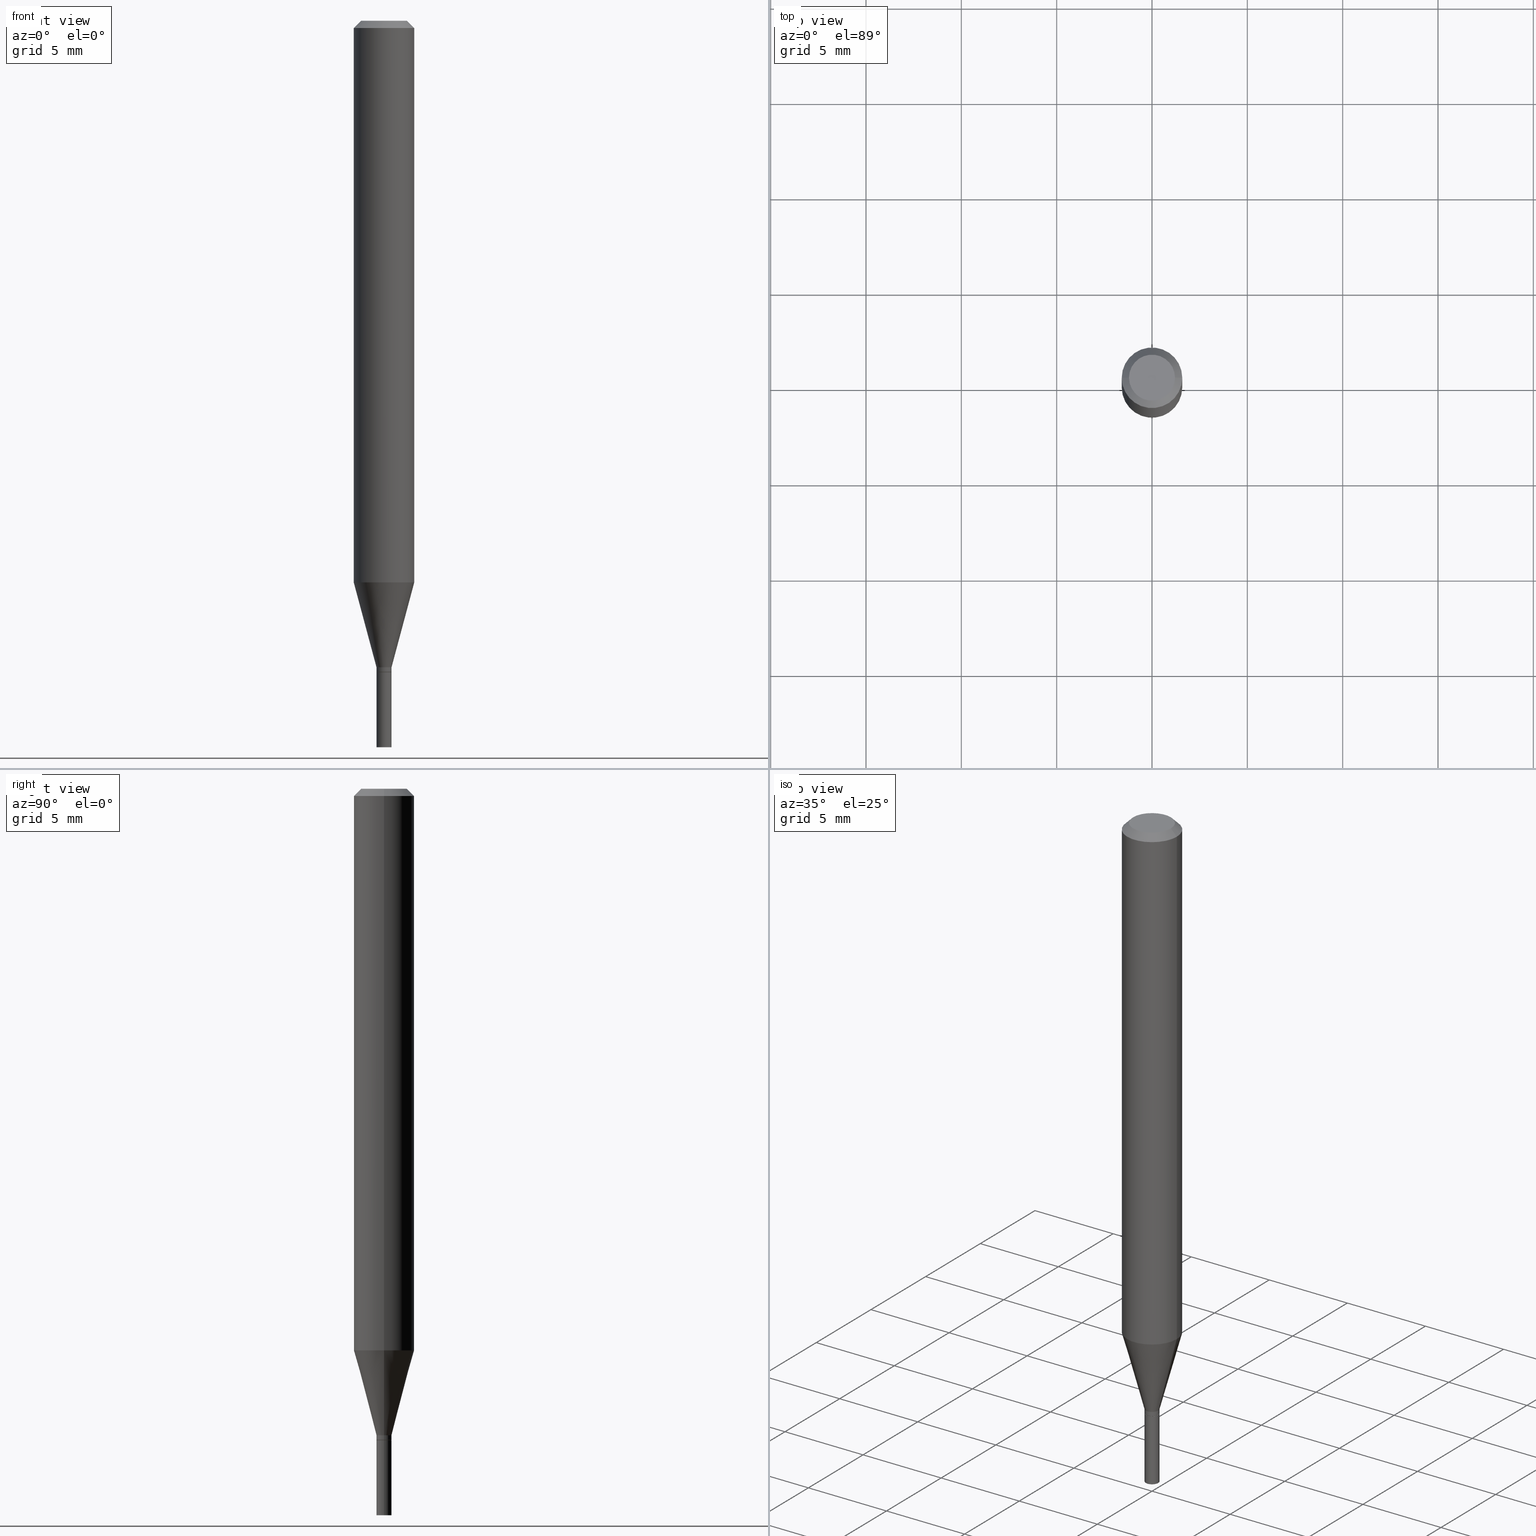
[diagram: canonical four-view strip — front | top / right | iso, engineering-drawing reading convention]
A machine part, canonical four-view strip (front | top / right | iso — engineering-drawing reading convention). The complete STEP part file that produces these views, byte-faithful:
ISO-10303-21;
HEADER;
FILE_DESCRIPTION (( 'STEP AP203' ),
    '1' );
FILE_NAME ('04187.STEP',
    '2024-03-14T17:14:28',
    ( '' ),
    ( '' ),
    'SwSTEP 2.0',
    'SolidWorks 2023',
    '' );
FILE_SCHEMA (( 'CONFIG_CONTROL_DESIGN' ));
ENDSEC;

DATA;
#1 = PERSON_AND_ORGANIZATION ( #73, #51 ) ;
#2 = AXIS2_PLACEMENT_3D ( 'NONE', #4, #323, #365 ) ;
#3 = LENGTH_MEASURE_WITH_UNIT ( LENGTH_MEASURE( 0.02539999999999999897 ), #172 );
#4 = CARTESIAN_POINT ( 'NONE',  ( 2.835750006105794188E-29, -4.048699457094262209E-15, -1.159593612044262922 ) ) ;
#5 = APPLICATION_CONTEXT ( 'configuration controlled 3d designs of mechanical parts and assemblies' ) ;
#6 = DIRECTION ( 'NONE',  ( -2.445468806185136597E-29, 3.491481338843145583E-15, 1.000000000000000000 ) ) ;
#7 = PERSON_AND_ORGANIZATION ( #73, #51 ) ;
#8 = APPROVAL_DATE_TIME ( #401, #173 ) ;
#9 = EDGE_LOOP ( 'NONE', ( #222, #300, #385, #147 ) ) ;
#10 = CC_DESIGN_APPROVAL ( #173, ( #248 ) ) ;
#11 = UNCERTAINTY_MEASURE_WITH_UNIT (LENGTH_MEASURE( 1.000000000000000082E-05 ), #429, 'distance_accuracy_value', 'NONE');
#12 = EDGE_CURVE ( 'NONE', #27, #245, #356, .T. ) ;
#13 = ORIENTED_EDGE ( 'NONE', *, *, #62, .F. ) ;
#14 = ADVANCED_FACE ( 'NONE', ( #285 ), #209, .T. ) ;
#15 = CARTESIAN_POINT ( 'NONE',  ( 0.01549999999999992183, -4.802532581578747222E-15, -1.344500000000000473 ) ) ;
#16 = EDGE_CURVE ( 'NONE', #138, #306, #57, .T. ) ;
#17 = DIRECTION ( 'NONE',  ( -2.445468806185136877E-29, 3.491481338843145188E-15, 1.000000000000000000 ) ) ;
#18 = AXIS2_PLACEMENT_3D ( 'NONE', #100, #30, #40 ) ;
#19 = FACE_OUTER_BOUND ( 'NONE', #419, .T. ) ;
#20 = DIRECTION ( 'NONE',  ( 2.445468806185136597E-29, -3.491481338843145583E-15, -1.000000000000000000 ) ) ;
#21 = DIRECTION ( 'NONE',  ( 1.000000000000000000, -6.982962677686273810E-15, 0.000000000000000000 ) ) ;
#22 = ORIENTED_EDGE ( 'NONE', *, *, #125, .T. ) ;
#23 = CYLINDRICAL_SURFACE ( 'NONE', #247, 0.01549999999999999989 ) ;
#24 = CARTESIAN_POINT ( 'NONE',  ( 0.000000000000000000, 0.000000000000000000, 0.000000000000000000 ) ) ;
#25 = FACE_OUTER_BOUND ( 'NONE', #281, .T. ) ;
#26 = LOCAL_TIME ( 13, 14, 28.00000000000000000, #207 ) ;
#27 = VERTEX_POINT ( 'NONE', #278 ) ;
#28 = DIRECTION ( 'NONE',  ( 1.000000000000000000, -6.982962677686262766E-15, 0.000000000000000000 ) ) ;
#29 = VERTEX_POINT ( 'NONE', #243 ) ;
#30 = DIRECTION ( 'NONE',  ( -2.445468806185136597E-29, 3.491481338843145583E-15, 1.000000000000000000 ) ) ;
#31 = CC_DESIGN_PERSON_AND_ORGANIZATION_ASSIGNMENT ( #293, #439, ( #265 ) ) ;
#32 = ORIENTED_EDGE ( 'NONE', *, *, #16, .T. ) ;
#33 = VERTEX_POINT ( 'NONE', #15 ) ;
#34 = CARTESIAN_POINT ( 'NONE',  ( 0.000000000000000000, 0.000000000000000000, 0.000000000000000000 ) ) ;
#35 = AXIS2_PLACEMENT_3D ( 'NONE', #461, #313, #168 ) ;
#36 = ORIENTED_EDGE ( 'NONE', *, *, #431, .T. ) ;
#37 = PERSON_AND_ORGANIZATION ( #73, #51 ) ;
#38 = CARTESIAN_POINT ( 'NONE',  ( 0.01549999999999991836, -4.769363508859736288E-15, -1.335000000000000187 ) ) ;
#39 = EDGE_CURVE ( 'NONE', #289, #33, #190, .T. ) ;
#40 = DIRECTION ( 'NONE',  ( 1.000000000000000000, -6.982962677686275388E-15, 0.000000000000000000 ) ) ;
#41 = EDGE_CURVE ( 'NONE', #64, #452, #169, .T. ) ;
#42 = EDGE_LOOP ( 'NONE', ( #70, #187, #353, #380 ) ) ;
#43 = APPROVAL_ROLE ( '' ) ;
#44 = ADVANCED_FACE ( 'NONE', ( #261 ), #337, .T. ) ;
#45 = PERSON_AND_ORGANIZATION ( #73, #51 ) ;
#46 = CARTESIAN_POINT ( 'NONE',  ( -0.01549999999999999989, -4.856498080461560425E-15, -1.500000000000000222 ) ) ;
#47 = DIRECTION ( 'NONE',  ( 1.000000000000000000, -6.982962677686275388E-15, 0.000000000000000000 ) ) ;
#48 = VECTOR ( 'NONE', #262, 39.37007874015748143 ) ;
#49 = ADVANCED_FACE ( 'NONE', ( #19 ), #159, .T. ) ;
#50 = CARTESIAN_POINT ( 'NONE',  ( 0.01549999999999992009, -1.082359215041365862E-16, 7.558074002483661383E-31 ) ) ;
#51 = ORGANIZATION ( 'UNSPECIFIED', 'UNSPECIFIED', '' ) ;
#52 = PRODUCT_RELATED_PRODUCT_CATEGORY ( 'detail', '', ( #344 ) ) ;
#53 = CARTESIAN_POINT ( 'NONE',  ( -0.01549999999999992009, 1.101341240428149610E-16, -7.624349389895064522E-31 ) ) ;
#54 = CARTESIAN_POINT ( 'NONE',  ( 3.289155544319009306E-29, -4.696042400744032349E-15, -1.345000000000000195 ) ) ;
#55 = EDGE_CURVE ( 'NONE', #139, #391, #85, .T. ) ;
#56 = CARTESIAN_POINT ( 'NONE',  ( -0.06250000000000000000, -1.606446628738392225E-15, -0.01499999999999999944 ) ) ;
#57 = CIRCLE ( 'NONE', #149, 0.01549999999999999989 ) ;
#58 = DIRECTION ( 'NONE',  ( 2.438088387897960049E-29, -3.491481338843145188E-15, -1.000000000000000000 ) ) ;
#59 = CIRCLE ( 'NONE', #87, 0.04749999999999999362 ) ;
#60 = DIRECTION ( 'NONE',  ( 1.000000000000000000, -6.982962677686275388E-15, 0.000000000000000000 ) ) ;
#61 = ORIENTED_EDGE ( 'NONE', *, *, #83, .T. ) ;
#62 = EDGE_CURVE ( 'NONE', #29, #138, #235, .T. ) ;
#63 = EDGE_CURVE ( 'NONE', #452, #81, #448, .T. ) ;
#64 = VERTEX_POINT ( 'NONE', #374 ) ;
#65 = PERSON_AND_ORGANIZATION_ROLE ( 'design_owner' ) ;
#66 = CARTESIAN_POINT ( 'NONE',  ( 3.668203209277705088E-31, -5.237222008264718399E-17, -0.01499999999999999944 ) ) ;
#67 = ORIENTED_EDGE ( 'NONE', *, *, #63, .F. ) ;
#68 = DIRECTION ( 'NONE',  ( 1.000000000000000000, -6.982962677686268288E-15, 0.000000000000000000 ) ) ;
#69 = AXIS2_PLACEMENT_3D ( 'NONE', #114, #257, #403 ) ;
#70 = ORIENTED_EDGE ( 'NONE', *, *, #12, .F. ) ;
#71 = DIRECTION ( 'NONE',  ( 0.2588190451025212391, 1.565188264969622362E-15, 0.9659258262890679791 ) ) ;
#72 = CYLINDRICAL_SURFACE ( 'NONE', #212, 0.06250000000000000000 ) ;
#73 = PERSON ( 'UNSPECIFIED', 'UNSPECIFIED', 'UNSPECIFIED', ('UNSPECIFIED'), ('UNSPECIFIED'), ('UNSPECIFIED') ) ;
#74 = VECTOR ( 'NONE', #213, 39.37007874015748143 ) ;
#75 = PERSON_AND_ORGANIZATION ( #73, #51 ) ;
#76 = DIRECTION ( 'NONE',  ( -2.445468806185136597E-29, 3.491481338843145583E-15, 1.000000000000000000 ) ) ;
#77 = AXIS2_PLACEMENT_3D ( 'NONE', #417, #121, #118 ) ;
#78 = CC_DESIGN_PERSON_AND_ORGANIZATION_ASSIGNMENT ( #354, #65, ( #344 ) ) ;
#79 = LOCAL_TIME ( 13, 14, 28.00000000000000000, #181 ) ;
#80 = SHAPE_DEFINITION_REPRESENTATION ( #134, #349 ) ;
#81 = VERTEX_POINT ( 'NONE', #56 ) ;
#82 = DIRECTION ( 'NONE',  ( -2.445468806185136877E-29, 3.491481338843145188E-15, 1.000000000000000000 ) ) ;
#83 = EDGE_CURVE ( 'NONE', #166, #306, #305, .T. ) ;
#84 = DIRECTION ( 'NONE',  ( -2.445468806185136597E-29, 3.491481338843145583E-15, 1.000000000000000000 ) ) ;
#85 = CIRCLE ( 'NONE', #192, 0.01549999999999991836 ) ;
#86 = FACE_OUTER_BOUND ( 'NONE', #406, .T. ) ;
#87 = AXIS2_PLACEMENT_3D ( 'NONE', #454, #201, #122 ) ;
#88 = DIRECTION ( 'NONE',  ( -2.445468806185136597E-29, 3.491481338843145583E-15, 1.000000000000000000 ) ) ;
#89 = EDGE_LOOP ( 'NONE', ( #182, #342, #233, #396 ) ) ;
#90 = EDGE_CURVE ( 'NONE', #289, #273, #450, .T. ) ;
#91 = CARTESIAN_POINT ( 'NONE',  ( 0.06250000000000000000, -4.811533449433679005E-16, -0.01499999999999999944 ) ) ;
#92 = CARTESIAN_POINT ( 'NONE',  ( 3.264700856257157760E-29, -4.661127587355599122E-15, -1.335000000000000187 ) ) ;
#93 = CARTESIAN_POINT ( 'NONE',  ( 3.264700856257157760E-29, -4.661127587355599122E-15, -1.335000000000000187 ) ) ;
#94 = ADVANCED_FACE ( 'NONE', ( #241 ), #421, .T. ) ;
#95 = ORIENTED_EDGE ( 'NONE', *, *, #221, .T. ) ;
#96 = DIRECTION ( 'NONE',  ( 0.000000000000000000, 0.000000000000000000, 1.000000000000000000 ) ) ;
#97 = CONICAL_SURFACE ( 'NONE', #174, 0.06250000000000000000, 0.7853981633974639331 ) ;
#98 = ADVANCED_FACE ( 'NONE', ( #432 ), #197, .T. ) ;
#99 = ORIENTED_EDGE ( 'NONE', *, *, #295, .F. ) ;
#100 = CARTESIAN_POINT ( 'NONE',  ( 3.264700856257157760E-29, -4.661127587355599122E-15, -1.335000000000000187 ) ) ;
#101 = EDGE_LOOP ( 'NONE', ( #402, #102, #123, #457 ) ) ;
#102 = ORIENTED_EDGE ( 'NONE', *, *, #107, .T. ) ;
#103 = DIRECTION ( 'NONE',  ( 1.000000000000000000, 0.000000000000000000, 0.000000000000000000 ) ) ;
#104 = EDGE_LOOP ( 'NONE', ( #111, #156, #67, #128 ) ) ;
#105 = PERSON_AND_ORGANIZATION_ROLE ( 'creator' ) ;
#106 = AXIS2_PLACEMENT_3D ( 'NONE', #34, #423, #277 ) ;
#107 = EDGE_CURVE ( 'NONE', #139, #176, #314, .T. ) ;
#108 = DATE_AND_TIME ( #283, #131 ) ;
#109 = AXIS2_PLACEMENT_3D ( 'NONE', #198, #58, #203 ) ;
#110 = ORIENTED_EDGE ( 'NONE', *, *, #62, .T. ) ;
#111 = ORIENTED_EDGE ( 'NONE', *, *, #205, .T. ) ;
#112 = DESIGN_CONTEXT ( 'detailed design', #216, 'design' ) ;
#113 = CC_DESIGN_DATE_AND_TIME_ASSIGNMENT ( #108, #224, ( #441 ) ) ;
#114 = CARTESIAN_POINT ( 'NONE',  ( 3.576687321579069994E-29, -5.368277968210015545E-15, -1.500000000000000222 ) ) ;
#115 = AXIS2_PLACEMENT_3D ( 'NONE', #320, #6, #436 ) ;
#116 = EDGE_CURVE ( 'NONE', #176, #64, #440, .T. ) ;
#117 = CARTESIAN_POINT ( 'NONE',  ( -0.06250000000000000000, 4.440892098500626162E-16, -3.074334431409316114E-30 ) ) ;
#118 = DIRECTION ( 'NONE',  ( -1.000000000000000000, 6.982962677686265922E-15, -4.876176775795935793E-29 ) ) ;
#119 = DIRECTION ( 'NONE',  ( 1.000000000000000000, -6.982962677686266711E-15, 4.876176775795935232E-29 ) ) ;
#120 = CIRCLE ( 'NONE', #389, 0.06250000000000000000 ) ;
#121 = DIRECTION ( 'NONE',  ( 2.438088387897960049E-29, -3.491481338843145188E-15, -1.000000000000000000 ) ) ;
#122 = DIRECTION ( 'NONE',  ( 1.000000000000000000, -6.982962677686267499E-15, 4.852736867747366768E-29 ) ) ;
#123 = ORIENTED_EDGE ( 'NONE', *, *, #205, .F. ) ;
#124 = DIRECTION ( 'NONE',  ( -0.7071067811865642261, 7.493145998870414114E-15, 0.7071067811865309194 ) ) ;
#125 = EDGE_CURVE ( 'NONE', #245, #27, #59, .T. ) ;
#126 = CARTESIAN_POINT ( 'NONE',  ( 0.000000000000000000, 0.000000000000000000, 0.000000000000000000 ) ) ;
#127 = CARTESIAN_POINT ( 'NONE',  ( 0.000000000000000000, 0.000000000000000000, 0.000000000000000000 ) ) ;
#128 = ORIENTED_EDGE ( 'NONE', *, *, #41, .F. ) ;
#129 = FACE_OUTER_BOUND ( 'NONE', #104, .T. ) ;
#130 = ADVANCED_FACE ( 'NONE', ( #25 ), #296, .F. ) ;
#131 = LOCAL_TIME ( 13, 14, 28.00000000000000000, #246 ) ;
#132 = CC_DESIGN_SECURITY_CLASSIFICATION ( #248, ( #265 ) ) ;
#133 = DIRECTION ( 'NONE',  ( -1.000000000000000000, 6.982962677686266711E-15, 0.000000000000000000 ) ) ;
#134 = PRODUCT_DEFINITION_SHAPE ( 'NONE', 'NONE',  #441 ) ;
#135 = ORIENTED_EDGE ( 'NONE', *, *, #12, .T. ) ;
#136 = DIRECTION ( 'NONE',  ( 1.000000000000000000, -6.982962677686266711E-15, 4.876176775795935793E-29 ) ) ;
#137 = DIRECTION ( 'NONE',  ( 1.000000000000000000, -6.982962677686238312E-15, 0.000000000000000000 ) ) ;
#138 = VERTEX_POINT ( 'NONE', #175 ) ;
#139 = VERTEX_POINT ( 'NONE', #317 ) ;
#140 = LINE ( 'NONE', #38, #358 ) ;
#141 = DIRECTION ( 'NONE',  ( -2.445468806185136877E-29, 3.491481338843145188E-15, 1.000000000000000000 ) ) ;
#142 = CC_DESIGN_APPROVAL ( #359, ( #265 ) ) ;
#143 = DATE_AND_TIME ( #148, #79 ) ;
#144 = FACE_OUTER_BOUND ( 'NONE', #427, .T. ) ;
#145 = CIRCLE ( 'NONE', #379, 0.01549999999999992183 ) ;
#146 = CC_DESIGN_PERSON_AND_ORGANIZATION_ASSIGNMENT ( #1, #105, ( #441 ) ) ;
#147 = ORIENTED_EDGE ( 'NONE', *, *, #39, .F. ) ;
#148 = CALENDAR_DATE ( 2024, 14, 3 ) ;
#149 = AXIS2_PLACEMENT_3D ( 'NONE', #167, #378, #137 ) ;
#150 = CIRCLE ( 'NONE', #258, 0.01549999999999999989 ) ;
#151 = DIRECTION ( 'NONE',  ( -2.438088387897960049E-29, 3.491481338843145188E-15, 1.000000000000000000 ) ) ;
#152 = DIRECTION ( 'NONE',  ( -2.445468806185136597E-29, 3.491481338843145583E-15, 1.000000000000000000 ) ) ;
#153 = CARTESIAN_POINT ( 'NONE',  ( 3.287932809915917065E-29, -4.694296660074610845E-15, -1.344500000000000473 ) ) ;
#154 = EDGE_CURVE ( 'NONE', #29, #166, #150, .T. ) ;
#155 = DIRECTION ( 'NONE',  ( -2.445468806185136597E-29, 3.491481338843145583E-15, 1.000000000000000000 ) ) ;
#156 = ORIENTED_EDGE ( 'NONE', *, *, #269, .T. ) ;
#157 = AXIS2_PLACEMENT_3D ( 'NONE', #93, #449, #47 ) ;
#158 = DIRECTION ( 'NONE',  ( -1.000000000000000000, 6.982962677686266711E-15, 0.000000000000000000 ) ) ;
#159 = CYLINDRICAL_SURFACE ( 'NONE', #433, 0.01549999999999999989 ) ;
#160 = ORIENTED_EDGE ( 'NONE', *, *, #295, .T. ) ;
#161 = FACE_OUTER_BOUND ( 'NONE', #214, .T. ) ;
#162 = LINE ( 'NONE', #459, #193 ) ;
#163 = ADVANCED_FACE ( 'NONE', ( #144 ), #352, .T. ) ;
#164 = EDGE_LOOP ( 'NONE', ( #99, #95, #445, #388 ) ) ;
#165 = CARTESIAN_POINT ( 'NONE',  ( 0.000000000000000000, 0.000000000000000000, 0.000000000000000000 ) ) ;
#166 = VERTEX_POINT ( 'NONE', #46 ) ;
#167 = CARTESIAN_POINT ( 'NONE',  ( 3.289155544319009306E-29, -4.696042400744032349E-15, -1.345000000000000195 ) ) ;
#168 = DIRECTION ( 'NONE',  ( 1.000000000000000000, -6.982962677686238312E-15, 0.000000000000000000 ) ) ;
#169 = LINE ( 'NONE', #384, #48 ) ;
#170 = EDGE_CURVE ( 'NONE', #245, #81, #162, .T. ) ;
#171 = CARTESIAN_POINT ( 'NONE',  ( 3.289155544319009306E-29, -4.696042400744032349E-15, -1.345000000000000195 ) ) ;
#172 =( LENGTH_UNIT ( ) NAMED_UNIT ( * ) SI_UNIT ( $, .METRE. ) );
#173 = APPROVAL ( #318, 'UNSPECIFIED' ) ;
#174 = AXIS2_PLACEMENT_3D ( 'NONE', #228, #20, #158 ) ;
#175 = CARTESIAN_POINT ( 'NONE',  ( 0.01549999999999999989, -4.804278322248168726E-15, -1.345000000000000195 ) ) ;
#176 = VERTEX_POINT ( 'NONE', #291 ) ;
#177 = CARTESIAN_POINT ( 'NONE',  ( 3.668203209277704895E-29, -5.237222008264718177E-15, -1.500000000000000222 ) ) ;
#178 = EDGE_LOOP ( 'NONE', ( #251, #237 ) ) ;
#179 = APPROVAL_ROLE ( '' ) ;
#180 = DIRECTION ( 'NONE',  ( 1.000000000000000000, -6.982962677686238312E-15, 0.000000000000000000 ) ) ;
#181 = COORDINATED_UNIVERSAL_TIME_OFFSET ( 5, 0, .BEHIND. ) ;
#182 = ORIENTED_EDGE ( 'NONE', *, *, #276, .F. ) ;
#183 = EDGE_CURVE ( 'NONE', #33, #447, #145, .T. ) ;
#184 = CONICAL_SURFACE ( 'NONE', #157, 0.01549999999999991836, 0.2617993877991499629 ) ;
#185 = APPROVAL_PERSON_ORGANIZATION ( #75, #173, #179 ) ;
#186 = APPROVAL_DATE_TIME ( #143, #359 ) ;
#187 = ORIENTED_EDGE ( 'NONE', *, *, #328, .T. ) ;
#188 = APPROVAL_STATUS ( 'not_yet_approved' ) ;
#189 = DIMENSIONAL_EXPONENTS ( 1.000000000000000000, 0.000000000000000000, 0.000000000000000000, 0.000000000000000000, 0.000000000000000000, 0.000000000000000000, 0.000000000000000000 ) ;
#190 = LINE ( 'NONE', #442, #74 ) ;
#191 = PLANE ( 'NONE',  #331 ) ;
#192 = AXIS2_PLACEMENT_3D ( 'NONE', #92, #152, #60 ) ;
#193 = VECTOR ( 'NONE', #325, 39.37007874015748143 ) ;
#194 = DIRECTION ( 'NONE',  ( 1.000000000000000000, -6.982962677686267499E-15, 4.852736867747366768E-29 ) ) ;
#195 = LOCAL_TIME ( 13, 14, 28.00000000000000000, #329 ) ;
#196 = DIRECTION ( 'NONE',  ( -2.445468806185136597E-29, 3.491481338843145583E-15, 1.000000000000000000 ) ) ;
#197 = CONICAL_SURFACE ( 'NONE', #363, 0.06250000000000000000, 0.7853981633974639331 ) ;
#198 = CARTESIAN_POINT ( 'NONE',  ( 3.316907271900976096E-16, 0.04749999999999999362, -4.000479145938377490E-16 ) ) ;
#199 = EDGE_CURVE ( 'NONE', #273, #289, #316, .T. ) ;
#200 = DIRECTION ( 'NONE',  ( -2.445468806185136597E-29, 3.491481338843145583E-15, 1.000000000000000000 ) ) ;
#201 = DIRECTION ( 'NONE',  ( -2.445468806185136597E-29, 3.491481338843145583E-15, 1.000000000000000000 ) ) ;
#202 = VECTOR ( 'NONE', #124, 39.37007874015748143 ) ;
#203 = DIRECTION ( 'NONE',  ( -1.000000000000000000, 6.982962677686265922E-15, -4.876176775795935793E-29 ) ) ;
#204 = DIRECTION ( 'NONE',  ( -2.445468806185136877E-29, 3.491481338843145188E-15, 1.000000000000000000 ) ) ;
#205 = EDGE_CURVE ( 'NONE', #64, #176, #120, .T. ) ;
#206 = APPLICATION_PROTOCOL_DEFINITION ( 'international standard', 'config_control_design', 1994, #216 ) ;
#207 = COORDINATED_UNIVERSAL_TIME_OFFSET ( 5, 0, .BEHIND. ) ;
#208 = AXIS2_PLACEMENT_3D ( 'NONE', #127, #367, #268 ) ;
#209 = CONICAL_SURFACE ( 'NONE', #347, 0.01499999999999999944, 0.7853981633974718157 ) ;
#210 = ORIENTED_EDGE ( 'NONE', *, *, #16, .F. ) ;
#211 = DATE_AND_TIME ( #346, #26 ) ;
#212 = AXIS2_PLACEMENT_3D ( 'NONE', #165, #343, #136 ) ;
#213 = DIRECTION ( 'NONE',  ( 0.7071067811865642261, -2.468850131082431399E-15, 0.7071067811865309194 ) ) ;
#214 = EDGE_LOOP ( 'NONE', ( #394, #227, #110, #266 ) ) ;
#215 = DIRECTION ( 'NONE',  ( 1.000000000000000000, -6.982962677686268288E-15, 0.000000000000000000 ) ) ;
#216 = APPLICATION_CONTEXT ( 'configuration controlled 3d designs of mechanical parts and assemblies' ) ;
#217 = CARTESIAN_POINT ( 'NONE',  ( 0.06250000000000000000, -4.888073874380388472E-16, -0.01499999999999999944 ) ) ;
#218 = CALENDAR_DATE ( 2024, 14, 3 ) ;
#219 = ORIENTED_EDGE ( 'NONE', *, *, #399, .T. ) ;
#220 = CIRCLE ( 'NONE', #18, 0.01549999999999991836 ) ;
#221 = EDGE_CURVE ( 'NONE', #447, #33, #229, .T. ) ;
#222 = ORIENTED_EDGE ( 'NONE', *, *, #90, .T. ) ;
#223 = AXIS2_PLACEMENT_3D ( 'NONE', #430, #76, #397 ) ;
#224 = DATE_TIME_ROLE ( 'creation_date' ) ;
#225 = CC_DESIGN_APPROVAL ( #254, ( #441 ) ) ;
#226 = CARTESIAN_POINT ( 'NONE',  ( 0.01549999999999991836, -4.769363508859736288E-15, -1.335000000000000187 ) ) ;
#227 = ORIENTED_EDGE ( 'NONE', *, *, #308, .T. ) ;
#228 = CARTESIAN_POINT ( 'NONE',  ( 3.668203209277705088E-31, -5.237222008264718399E-17, -0.01499999999999999944 ) ) ;
#229 = CIRCLE ( 'NONE', #326, 0.01549999999999992183 ) ;
#230 = ORIENTED_EDGE ( 'NONE', *, *, #125, .F. ) ;
#231 = CARTESIAN_POINT ( 'NONE',  ( -0.01499999999999999944, -4.589460990380017226E-15, -1.345000000000000195 ) ) ;
#232 = MANIFOLD_SOLID_BREP ( 'Body-Move/Copy2[1]', #368 ) ;
#233 = ORIENTED_EDGE ( 'NONE', *, *, #39, .T. ) ;
#234 = PLANE ( 'NONE',  #109 ) ;
#235 = LINE ( 'NONE', #418, #351 ) ;
#236 = DIRECTION ( 'NONE',  ( -2.445468806185136877E-29, 3.491481338843145188E-15, 1.000000000000000000 ) ) ;
#237 = ORIENTED_EDGE ( 'NONE', *, *, #199, .F. ) ;
#238 = CIRCLE ( 'NONE', #339, 0.01549999999999999989 ) ;
#239 = EDGE_LOOP ( 'NONE', ( #345, #422, #303, #271 ) ) ;
#240 = CC_DESIGN_PERSON_AND_ORGANIZATION_ASSIGNMENT ( #360, #362, ( #248 ) ) ;
#241 = FACE_OUTER_BOUND ( 'NONE', #9, .T. ) ;
#242 = ORIENTED_EDGE ( 'NONE', *, *, #308, .F. ) ;
#243 = CARTESIAN_POINT ( 'NONE',  ( 0.01549999999999999989, -5.345457929768855342E-15, -1.500000000000000222 ) ) ;
#244 = AXIS2_PLACEMENT_3D ( 'NONE', #264, #411, #372 ) ;
#245 = VERTEX_POINT ( 'NONE', #334 ) ;
#246 = COORDINATED_UNIVERSAL_TIME_OFFSET ( 5, 0, .BEHIND. ) ;
#247 = AXIS2_PLACEMENT_3D ( 'NONE', #126, #155, #405 ) ;
#248 = SECURITY_CLASSIFICATION ( '', '', #327 ) ;
#249 = DIRECTION ( 'NONE',  ( 1.000000000000000000, -6.982962677686266711E-15, 0.000000000000000000 ) ) ;
#250 = ADVANCED_FACE ( 'NONE', ( #307 ), #366, .F. ) ;
#251 = ORIENTED_EDGE ( 'NONE', *, *, #90, .F. ) ;
#252 = VECTOR ( 'NONE', #141, 39.37007874015748143 ) ;
#253 = AXIS2_PLACEMENT_3D ( 'NONE', #386, #96, #103 ) ;
#254 = APPROVAL ( #311, 'UNSPECIFIED' ) ;
#255 = ADVANCED_FACE ( 'NONE', ( #86 ), #336, .T. ) ;
#256 = CALENDAR_DATE ( 2024, 14, 3 ) ;
#257 = DIRECTION ( 'NONE',  ( -2.438088387897960049E-29, 3.491481338843145188E-15, 1.000000000000000000 ) ) ;
#258 = AXIS2_PLACEMENT_3D ( 'NONE', #177, #319, #180 ) ;
#259 = ADVANCED_FACE ( 'NONE', ( #260 ), #97, .T. ) ;
#260 = FACE_OUTER_BOUND ( 'NONE', #322, .T. ) ;
#261 = FACE_OUTER_BOUND ( 'NONE', #164, .T. ) ;
#262 = DIRECTION ( 'NONE',  ( -2.445468806185136877E-29, 3.491481338843145188E-15, 1.000000000000000000 ) ) ;
#263 = LINE ( 'NONE', #91, #451 ) ;
#264 = CARTESIAN_POINT ( 'NONE',  ( 3.668203209277705088E-31, -5.237222008264718399E-17, -0.01499999999999999944 ) ) ;
#265 = PRODUCT_DEFINITION_FORMATION_WITH_SPECIFIED_SOURCE ( 'ANY', '', #344, .NOT_KNOWN. ) ;
#266 = ORIENTED_EDGE ( 'NONE', *, *, #426, .F. ) ;
#267 = DIRECTION ( 'NONE',  ( -2.445468806185136597E-29, 3.491481338843145583E-15, 1.000000000000000000 ) ) ;
#268 = DIRECTION ( 'NONE',  ( 1.000000000000000000, -6.982962677686267499E-15, 4.876176775795935793E-29 ) ) ;
#269 = EDGE_CURVE ( 'NONE', #176, #81, #330, .T. ) ;
#270 = DIRECTION ( 'NONE',  ( 1.000000000000000000, -6.982962677686267499E-15, 4.876176775795935793E-29 ) ) ;
#271 = ORIENTED_EDGE ( 'NONE', *, *, #399, .F. ) ;
#272 = CC_DESIGN_PERSON_AND_ORGANIZATION_ASSIGNMENT ( #45, #286, ( #265 ) ) ;
#273 = VERTEX_POINT ( 'NONE', #453 ) ;
#274 =( GEOMETRIC_REPRESENTATION_CONTEXT ( 3 ) GLOBAL_UNCERTAINTY_ASSIGNED_CONTEXT ( ( #11 ) ) GLOBAL_UNIT_ASSIGNED_CONTEXT ( ( #429, #315, #393 ) ) REPRESENTATION_CONTEXT ( 'NONE', 'WORKASPACE' ) );
#275 = FACE_OUTER_BOUND ( 'NONE', #239, .T. ) ;
#276 = EDGE_CURVE ( 'NONE', #273, #447, #301, .T. ) ;
#277 = DIRECTION ( 'NONE',  ( 1.000000000000000000, -6.982962677686266711E-15, 4.876176775795935793E-29 ) ) ;
#278 = CARTESIAN_POINT ( 'NONE',  ( 0.04749999999999999362, -4.035134999187586019E-16, -4.684051019975741414E-16 ) ) ;
#279 = DIRECTION ( 'NONE',  ( -2.445468806185136597E-29, 3.491481338843145583E-15, 1.000000000000000000 ) ) ;
#280 = ORIENTED_EDGE ( 'NONE', *, *, #116, .F. ) ;
#281 = EDGE_LOOP ( 'NONE', ( #413, #242 ) ) ;
#282 = APPROVAL_DATE_TIME ( #211, #254 ) ;
#283 = CALENDAR_DATE ( 2024, 14, 3 ) ;
#284 = APPROVAL_PERSON_ORGANIZATION ( #7, #359, #43 ) ;
#285 = FACE_OUTER_BOUND ( 'NONE', #89, .T. ) ;
#286 = PERSON_AND_ORGANIZATION_ROLE ( 'creator' ) ;
#287 = APPROVAL_PERSON_ORGANIZATION ( #37, #254, #465 ) ;
#288 = ADVANCED_FACE ( 'NONE', ( #333 ), #184, .T. ) ;
#289 = VERTEX_POINT ( 'NONE', #458 ) ;
#290 = DATE_AND_TIME ( #256, #463 ) ;
#291 = CARTESIAN_POINT ( 'NONE',  ( -0.06250000000000000000, -3.604610247244199593E-15, -1.159593612044262922 ) ) ;
#292 = DIRECTION ( 'NONE',  ( -2.445468806185136597E-29, 3.491481338843145583E-15, 1.000000000000000000 ) ) ;
#293 = PERSON_AND_ORGANIZATION ( #73, #51 ) ;
#294 = CIRCLE ( 'NONE', #412, 0.06250000000000000000 ) ;
#295 = EDGE_CURVE ( 'NONE', #447, #139, #414, .T. ) ;
#296 = PLANE ( 'NONE',  #69 ) ;
#297 = DIRECTION ( 'NONE',  ( 1.000000000000000000, -6.982962677686265922E-15, 4.876176775795935793E-29 ) ) ;
#298 = DIRECTION ( 'NONE',  ( 1.000000000000000000, -6.982962677686238312E-15, 0.000000000000000000 ) ) ;
#299 = CARTESIAN_POINT ( 'NONE',  ( 3.289155544319009306E-29, -4.696042400744032349E-15, -1.345000000000000195 ) ) ;
#300 = ORIENTED_EDGE ( 'NONE', *, *, #276, .T. ) ;
#301 = LINE ( 'NONE', #231, #202 ) ;
#302 = CIRCLE ( 'NONE', #35, 0.01549999999999999989 ) ;
#303 = ORIENTED_EDGE ( 'NONE', *, *, #41, .T. ) ;
#304 = CARTESIAN_POINT ( 'NONE',  ( 2.835750006105794188E-29, -4.048699457094262209E-15, -1.159593612044262922 ) ) ;
#305 = LINE ( 'NONE', #455, #252 ) ;
#306 = VERTEX_POINT ( 'NONE', #369 ) ;
#307 = FACE_OUTER_BOUND ( 'NONE', #416, .T. ) ;
#308 = EDGE_CURVE ( 'NONE', #166, #29, #238, .T. ) ;
#309 = APPLICATION_PROTOCOL_DEFINITION ( 'international standard', 'config_control_design', 1994, #5 ) ;
#310 = AXIS2_PLACEMENT_3D ( 'NONE', #24, #267, #270 ) ;
#311 = APPROVAL_STATUS ( 'not_yet_approved' ) ;
#312 = ORIENTED_EDGE ( 'NONE', *, *, #335, .F. ) ;
#313 = DIRECTION ( 'NONE',  ( -2.445468806185136597E-29, 3.491481338843145583E-15, 1.000000000000000000 ) ) ;
#314 = LINE ( 'NONE', #387, #332 ) ;
#315 =( NAMED_UNIT ( * ) PLANE_ANGLE_UNIT ( ) SI_UNIT ( $, .RADIAN. ) );
#316 = CIRCLE ( 'NONE', #420, 0.01499999999999999944 ) ;
#317 = CARTESIAN_POINT ( 'NONE',  ( -0.01549999999999991836, -4.077801855278492136E-15, -1.335000000000000187 ) ) ;
#318 = APPROVAL_STATUS ( 'not_yet_approved' ) ;
#319 = DIRECTION ( 'NONE',  ( -2.445468806185136597E-29, 3.491481338843145583E-15, 1.000000000000000000 ) ) ;
#320 = CARTESIAN_POINT ( 'NONE',  ( 3.264700856257157760E-29, -4.661127587355599122E-15, -1.335000000000000187 ) ) ;
#321 = DIRECTION ( 'NONE',  ( -2.445468806185136597E-29, 3.491481338843145583E-15, 1.000000000000000000 ) ) ;
#322 = EDGE_LOOP ( 'NONE', ( #424, #230, #398, #219 ) ) ;
#323 = DIRECTION ( 'NONE',  ( -2.445468806185136597E-29, 3.491481338843145583E-15, 1.000000000000000000 ) ) ;
#324 = COORDINATED_UNIVERSAL_TIME_OFFSET ( 5, 0, .BEHIND. ) ;
#325 = DIRECTION ( 'NONE',  ( -0.7071067811865585639, 2.468850131082372629E-15, -0.7071067811865364705 ) ) ;
#326 = AXIS2_PLACEMENT_3D ( 'NONE', #153, #84, #409 ) ;
#327 = SECURITY_CLASSIFICATION_LEVEL ( 'unclassified' ) ;
#328 = EDGE_CURVE ( 'NONE', #27, #452, #263, .T. ) ;
#329 = COORDINATED_UNIVERSAL_TIME_OFFSET ( 5, 0, .BEHIND. ) ;
#330 = LINE ( 'NONE', #117, #404 ) ;
#331 = AXIS2_PLACEMENT_3D ( 'NONE', #54, #151, #297 ) ;
#332 = VECTOR ( 'NONE', #350, 39.37007874015748854 ) ;
#333 = FACE_OUTER_BOUND ( 'NONE', #101, .T. ) ;
#334 = CARTESIAN_POINT ( 'NONE',  ( -0.04749999999999999362, 3.578768372314202617E-16, -4.684051019975790718E-16 ) ) ;
#335 = EDGE_CURVE ( 'NONE', #33, #391, #407, .T. ) ;
#336 = CYLINDRICAL_SURFACE ( 'NONE', #310, 0.01549999999999992009 ) ;
#337 = CYLINDRICAL_SURFACE ( 'NONE', #208, 0.01549999999999992009 ) ;
#338 = AXIS2_PLACEMENT_3D ( 'NONE', #171, #279, #215 ) ;
#339 = AXIS2_PLACEMENT_3D ( 'NONE', #340, #377, #298 ) ;
#340 = CARTESIAN_POINT ( 'NONE',  ( 3.668203209277704895E-29, -5.237222008264718177E-15, -1.500000000000000222 ) ) ;
#341 = ADVANCED_FACE ( 'NONE', ( #371 ), #234, .F. ) ;
#342 = ORIENTED_EDGE ( 'NONE', *, *, #199, .T. ) ;
#343 = DIRECTION ( 'NONE',  ( -2.445468806185136597E-29, 3.491481338843145583E-15, 1.000000000000000000 ) ) ;
#344 = PRODUCT ( '04187', '04187', '', ( #381 ) ) ;
#345 = ORIENTED_EDGE ( 'NONE', *, *, #269, .F. ) ;
#346 = CALENDAR_DATE ( 2024, 14, 3 ) ;
#347 = AXIS2_PLACEMENT_3D ( 'NONE', #382, #456, #348 ) ;
#348 = DIRECTION ( 'NONE',  ( 1.000000000000000000, -6.982962677686268288E-15, 0.000000000000000000 ) ) ;
#349 = ADVANCED_BREP_SHAPE_REPRESENTATION ( '04187', ( #232, #390, #253 ), #274 ) ;
#350 = DIRECTION ( 'NONE',  ( -0.2588190451025212391, 5.211531920934549464E-15, 0.9659258262890679791 ) ) ;
#351 = VECTOR ( 'NONE', #204, 39.37007874015748143 ) ;
#352 = CONICAL_SURFACE ( 'NONE', #115, 0.01549999999999991836, 0.2617993877991499629 ) ;
#353 = ORIENTED_EDGE ( 'NONE', *, *, #63, .T. ) ;
#354 = PERSON_AND_ORGANIZATION ( #73, #51 ) ;
#355 = CARTESIAN_POINT ( 'NONE',  ( -0.01549999999999992183, -4.584162536031796402E-15, -1.344500000000000473 ) ) ;
#356 = CIRCLE ( 'NONE', #361, 0.04749999999999999362 ) ;
#357 = DIRECTION ( 'NONE',  ( 2.445468806185136597E-29, -3.491481338843145583E-15, -1.000000000000000000 ) ) ;
#358 = VECTOR ( 'NONE', #71, 39.37007874015748854 ) ;
#359 = APPROVAL ( #188, 'UNSPECIFIED' ) ;
#360 = PERSON_AND_ORGANIZATION ( #73, #51 ) ;
#361 = AXIS2_PLACEMENT_3D ( 'NONE', #364, #321, #194 ) ;
#362 = PERSON_AND_ORGANIZATION_ROLE ( 'classification_officer' ) ;
#363 = AXIS2_PLACEMENT_3D ( 'NONE', #66, #357, #133 ) ;
#364 = CARTESIAN_POINT ( 'NONE',  ( 1.145470065593040868E-44, -1.635427672643458845E-30, -4.684051019975766066E-16 ) ) ;
#365 = DIRECTION ( 'NONE',  ( 1.000000000000000000, -6.982962677686262766E-15, 0.000000000000000000 ) ) ;
#366 = PLANE ( 'NONE',  #77 ) ;
#367 = DIRECTION ( 'NONE',  ( -2.445468806185136597E-29, 3.491481338843145583E-15, 1.000000000000000000 ) ) ;
#368 = CLOSED_SHELL ( 'NONE', ( #49, #130, #383, #250 ) ) ;
#369 = CARTESIAN_POINT ( 'NONE',  ( -0.01549999999999999989, -4.856498080461560425E-15, -1.345000000000000195 ) ) ;
#370 = CC_DESIGN_DATE_AND_TIME_ASSIGNMENT ( #290, #435, ( #248 ) ) ;
#371 = FACE_OUTER_BOUND ( 'NONE', #434, .T. ) ;
#372 = DIRECTION ( 'NONE',  ( 1.000000000000000000, -6.982962677686266711E-15, 0.000000000000000000 ) ) ;
#373 = FACE_OUTER_BOUND ( 'NONE', #178, .T. ) ;
#374 = CARTESIAN_POINT ( 'NONE',  ( 0.06250000000000000000, -4.485134624449653879E-15, -1.159593612044262922 ) ) ;
#375 = ORIENTED_EDGE ( 'NONE', *, *, #107, .F. ) ;
#376 = DIRECTION ( 'NONE',  ( -2.445468806185136597E-29, 3.491481338843145583E-15, 1.000000000000000000 ) ) ;
#377 = DIRECTION ( 'NONE',  ( -2.445468806185136597E-29, 3.491481338843145583E-15, 1.000000000000000000 ) ) ;
#378 = DIRECTION ( 'NONE',  ( -2.445468806185136597E-29, 3.491481338843145583E-15, 1.000000000000000000 ) ) ;
#379 = AXIS2_PLACEMENT_3D ( 'NONE', #400, #292, #21 ) ;
#380 = ORIENTED_EDGE ( 'NONE', *, *, #170, .F. ) ;
#381 = MECHANICAL_CONTEXT ( 'NONE', #5, 'mechanical' ) ;
#382 = CARTESIAN_POINT ( 'NONE',  ( 3.289155544319009306E-29, -4.696042400744032349E-15, -1.345000000000000195 ) ) ;
#383 = ADVANCED_FACE ( 'NONE', ( #161 ), #23, .T. ) ;
#384 = CARTESIAN_POINT ( 'NONE',  ( 0.06250000000000000000, -4.364351673553916694E-16, 3.047610484872459871E-30 ) ) ;
#385 = ORIENTED_EDGE ( 'NONE', *, *, #183, .F. ) ;
#386 = CARTESIAN_POINT ( 'NONE',  ( 0.000000000000000000, 0.000000000000000000, 0.000000000000000000 ) ) ;
#387 = CARTESIAN_POINT ( 'NONE',  ( -0.01549999999999991836, -4.550993463312784679E-15, -1.335000000000000187 ) ) ;
#388 = ORIENTED_EDGE ( 'NONE', *, *, #55, .F. ) ;
#389 = AXIS2_PLACEMENT_3D ( 'NONE', #304, #196, #28 ) ;
#390 = MANIFOLD_SOLID_BREP ( 'Body-Move/Copy2[2]', #408 ) ;
#391 = VERTEX_POINT ( 'NONE', #226 ) ;
#392 = ADVANCED_FACE ( 'NONE', ( #373 ), #191, .F. ) ;
#393 =( NAMED_UNIT ( * ) SI_UNIT ( $, .STERADIAN. ) SOLID_ANGLE_UNIT ( ) );
#394 = ORIENTED_EDGE ( 'NONE', *, *, #83, .F. ) ;
#395 = CYLINDRICAL_SURFACE ( 'NONE', #106, 0.06250000000000000000 ) ;
#396 = ORIENTED_EDGE ( 'NONE', *, *, #221, .F. ) ;
#397 = DIRECTION ( 'NONE',  ( 1.000000000000000000, -6.982962677686268288E-15, 0.000000000000000000 ) ) ;
#398 = ORIENTED_EDGE ( 'NONE', *, *, #170, .T. ) ;
#399 = EDGE_CURVE ( 'NONE', #81, #452, #294, .T. ) ;
#400 = CARTESIAN_POINT ( 'NONE',  ( 3.287932809915917065E-29, -4.694296660074610845E-15, -1.344500000000000473 ) ) ;
#401 = DATE_AND_TIME ( #218, #195 ) ;
#402 = ORIENTED_EDGE ( 'NONE', *, *, #466, .T. ) ;
#403 = DIRECTION ( 'NONE',  ( 1.000000000000000000, -6.982962677686265922E-15, 4.876176775795935793E-29 ) ) ;
#404 = VECTOR ( 'NONE', #17, 39.37007874015748143 ) ;
#405 = DIRECTION ( 'NONE',  ( 1.000000000000000000, -6.982962677686266711E-15, 4.876176775795935232E-29 ) ) ;
#406 = EDGE_LOOP ( 'NONE', ( #428, #160, #460, #312 ) ) ;
#407 = LINE ( 'NONE', #50, #462 ) ;
#408 = CLOSED_SHELL ( 'NONE', ( #255, #94, #98, #438, #288, #163, #444, #259, #341, #392, #14, #44 ) ) ;
#409 = DIRECTION ( 'NONE',  ( 1.000000000000000000, -6.982962677686273810E-15, 0.000000000000000000 ) ) ;
#410 = VECTOR ( 'NONE', #236, 39.37007874015748143 ) ;
#411 = DIRECTION ( 'NONE',  ( -2.445468806185136597E-29, 3.491481338843145583E-15, 1.000000000000000000 ) ) ;
#412 = AXIS2_PLACEMENT_3D ( 'NONE', #443, #200, #249 ) ;
#413 = ORIENTED_EDGE ( 'NONE', *, *, #154, .F. ) ;
#414 = LINE ( 'NONE', #53, #410 ) ;
#415 = CARTESIAN_POINT ( 'NONE',  ( 0.000000000000000000, 0.000000000000000000, 0.000000000000000000 ) ) ;
#416 = EDGE_LOOP ( 'NONE', ( #32, #437 ) ) ;
#417 = CARTESIAN_POINT ( 'NONE',  ( 1.082359215041700019E-16, 0.01549999999999530399, -1.345000000000000195 ) ) ;
#418 = CARTESIAN_POINT ( 'NONE',  ( 0.01549999999999999989, -1.082359215041371286E-16, 7.558074002483699918E-31 ) ) ;
#419 = EDGE_LOOP ( 'NONE', ( #425, #61, #210, #13 ) ) ;
#420 = AXIS2_PLACEMENT_3D ( 'NONE', #299, #376, #68 ) ;
#421 = CONICAL_SURFACE ( 'NONE', #223, 0.01499999999999999944, 0.7853981633974718157 ) ;
#422 = ORIENTED_EDGE ( 'NONE', *, *, #116, .T. ) ;
#423 = DIRECTION ( 'NONE',  ( -2.445468806185136597E-29, 3.491481338843145583E-15, 1.000000000000000000 ) ) ;
#424 = ORIENTED_EDGE ( 'NONE', *, *, #328, .F. ) ;
#425 = ORIENTED_EDGE ( 'NONE', *, *, #154, .T. ) ;
#426 = EDGE_CURVE ( 'NONE', #306, #138, #302, .T. ) ;
#427 = EDGE_LOOP ( 'NONE', ( #375, #464, #36, #280 ) ) ;
#428 = ORIENTED_EDGE ( 'NONE', *, *, #183, .T. ) ;
#429 =( CONVERSION_BASED_UNIT ( 'INCH', #3 ) LENGTH_UNIT ( ) NAMED_UNIT ( #189 ) );
#430 = CARTESIAN_POINT ( 'NONE',  ( 3.289155544319009306E-29, -4.696042400744032349E-15, -1.345000000000000195 ) ) ;
#431 = EDGE_CURVE ( 'NONE', #391, #64, #140, .T. ) ;
#432 = FACE_OUTER_BOUND ( 'NONE', #42, .T. ) ;
#433 = AXIS2_PLACEMENT_3D ( 'NONE', #415, #88, #119 ) ;
#434 = EDGE_LOOP ( 'NONE', ( #22, #135 ) ) ;
#435 = DATE_TIME_ROLE ( 'classification_date' ) ;
#436 = DIRECTION ( 'NONE',  ( 1.000000000000000000, -6.982962677686275388E-15, 0.000000000000000000 ) ) ;
#437 = ORIENTED_EDGE ( 'NONE', *, *, #426, .T. ) ;
#438 = ADVANCED_FACE ( 'NONE', ( #129 ), #72, .T. ) ;
#439 = PERSON_AND_ORGANIZATION_ROLE ( 'design_supplier' ) ;
#440 = CIRCLE ( 'NONE', #2, 0.06250000000000000000 ) ;
#441 = PRODUCT_DEFINITION ( 'UNKNOWN', '', #265, #112 ) ;
#442 = CARTESIAN_POINT ( 'NONE',  ( 0.01499999999999999944, -4.800786840909326507E-15, -1.345000000000000195 ) ) ;
#443 = CARTESIAN_POINT ( 'NONE',  ( 3.668203209277705088E-31, -5.237222008264718399E-17, -0.01499999999999999944 ) ) ;
#444 = ADVANCED_FACE ( 'NONE', ( #275 ), #395, .T. ) ;
#445 = ORIENTED_EDGE ( 'NONE', *, *, #335, .T. ) ;
#446 = DIRECTION ( 'NONE',  ( 0.7071067811865585639, -7.319954787623292333E-15, -0.7071067811865364705 ) ) ;
#447 = VERTEX_POINT ( 'NONE', #355 ) ;
#448 = CIRCLE ( 'NONE', #244, 0.06250000000000000000 ) ;
#449 = DIRECTION ( 'NONE',  ( -2.445468806185136597E-29, 3.491481338843145583E-15, 1.000000000000000000 ) ) ;
#450 = CIRCLE ( 'NONE', #338, 0.01499999999999999944 ) ;
#451 = VECTOR ( 'NONE', #446, 39.37007874015748143 ) ;
#452 = VERTEX_POINT ( 'NONE', #217 ) ;
#453 = CARTESIAN_POINT ( 'NONE',  ( -0.01499999999999999944, -4.586811763205906025E-15, -1.345000000000000195 ) ) ;
#454 = CARTESIAN_POINT ( 'NONE',  ( 1.145470065593040868E-44, -1.635427672643458845E-30, -4.684051019975766066E-16 ) ) ;
#455 = CARTESIAN_POINT ( 'NONE',  ( -0.01549999999999999989, 1.101341240428155280E-16, -7.624349389895103058E-31 ) ) ;
#456 = DIRECTION ( 'NONE',  ( -2.445468806185136597E-29, 3.491481338843145583E-15, 1.000000000000000000 ) ) ;
#457 = ORIENTED_EDGE ( 'NONE', *, *, #431, .F. ) ;
#458 = CARTESIAN_POINT ( 'NONE',  ( 0.01499999999999999944, -4.800786840909326507E-15, -1.345000000000000195 ) ) ;
#459 = CARTESIAN_POINT ( 'NONE',  ( -0.06250000000000000000, 3.840629472727444916E-16, -0.01499999999999999944 ) ) ;
#460 = ORIENTED_EDGE ( 'NONE', *, *, #466, .F. ) ;
#461 = CARTESIAN_POINT ( 'NONE',  ( 3.289155544319009306E-29, -4.696042400744032349E-15, -1.345000000000000195 ) ) ;
#462 = VECTOR ( 'NONE', #82, 39.37007874015748143 ) ;
#463 = LOCAL_TIME ( 13, 14, 28.00000000000000000, #324 ) ;
#464 = ORIENTED_EDGE ( 'NONE', *, *, #55, .T. ) ;
#465 = APPROVAL_ROLE ( '' ) ;
#466 = EDGE_CURVE ( 'NONE', #391, #139, #220, .T. ) ;
ENDSEC;
END-ISO-10303-21;
